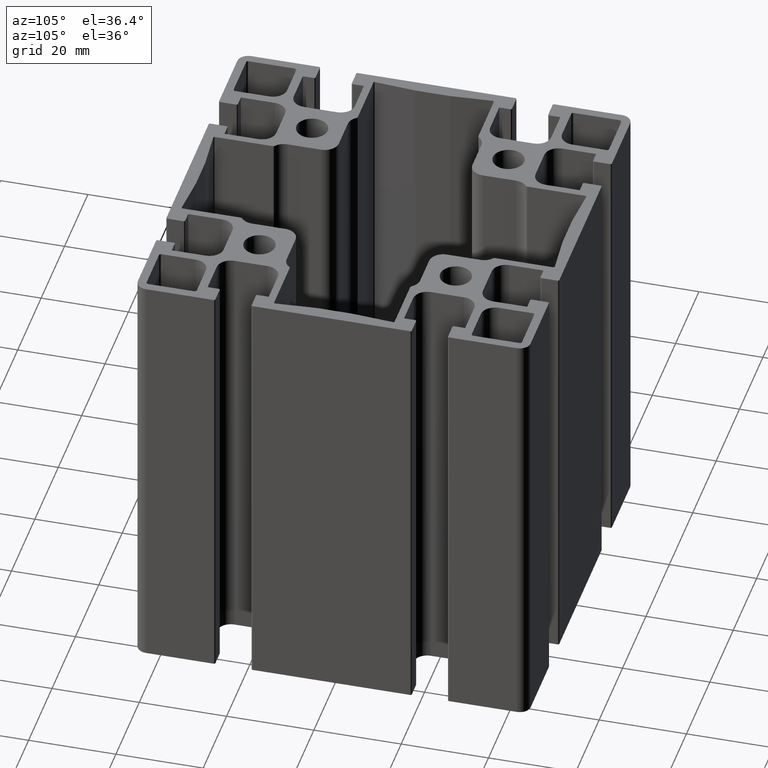
[diagram: clean part render]
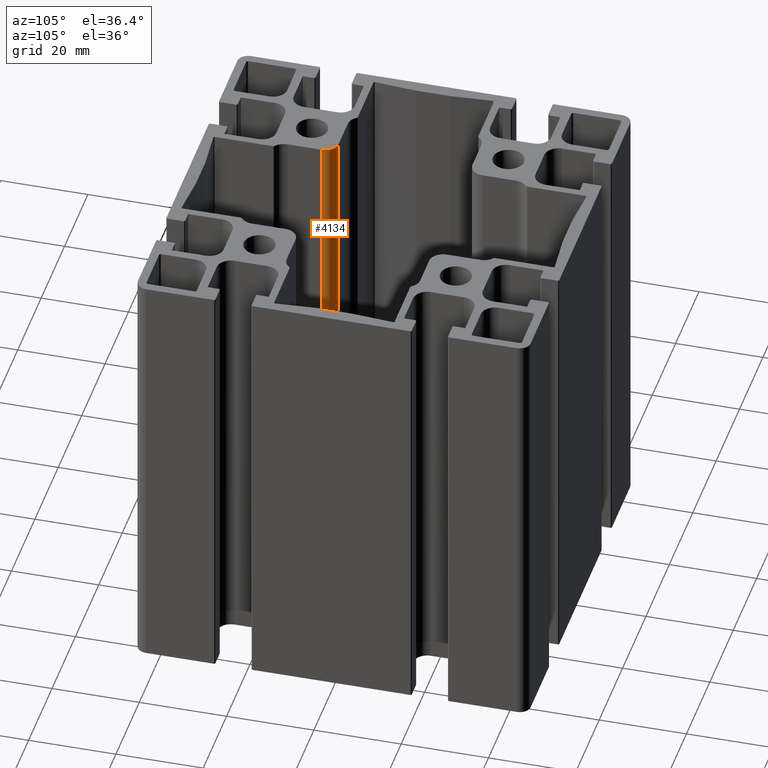
[diagram: same view with one face highlighted and labeled with its STEP entity id]
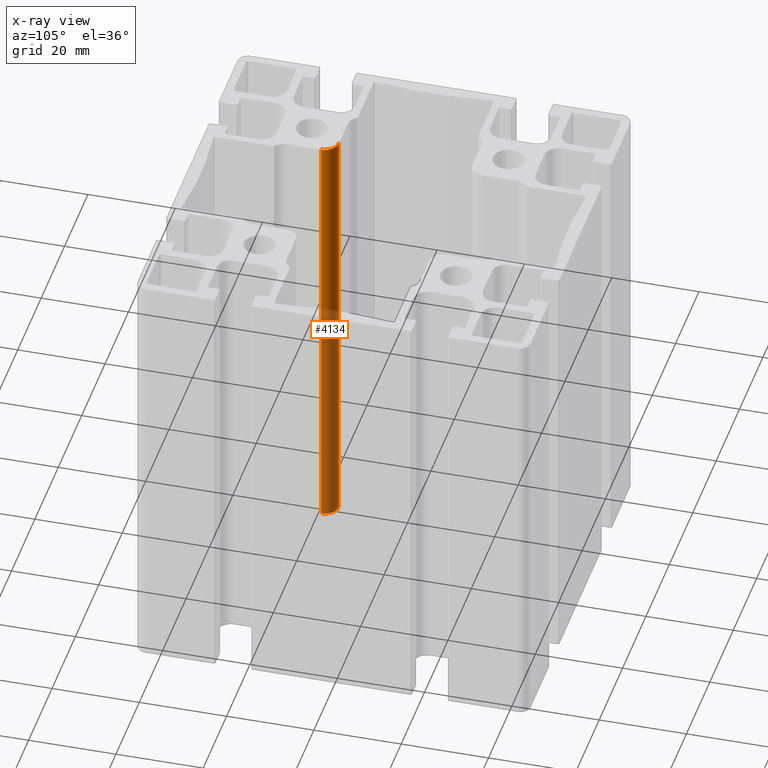
[diagram: x-ray of the same camera — body ghosted, the highlighted face saturated]
A machine part, auxiliary view. The second image highlights one B-rep face of the part: STEP entity #4134.
The next image is the same camera in x-ray: the body ghosted, the highlighted face saturated — about 56% of this face is hidden behind the body in this view.
In plain terms, the highlighted cylindrical surface (edge-blend (fillet) strip) has radius 3.2 mm, axis along (0, 0, 1).
Its self-contained STEP definition (entity closure, byte-faithful):
#85=CIRCLE('',#4399,3.2);
#86=CIRCLE('',#4400,3.2);
#261=CYLINDRICAL_SURFACE('',#4398,3.2);
#386=FACE_OUTER_BOUND('',#600,.T.);
#600=EDGE_LOOP('',(#2903,#2904,#2905,#2906));
#886=LINE('',#6274,#1318);
#887=LINE('',#6280,#1319);
#1318=VECTOR('',#5010,100.);
#1319=VECTOR('',#5017,100.);
#1749=VERTEX_POINT('',#6270);
#1750=VERTEX_POINT('',#6272);
#1751=VERTEX_POINT('',#6276);
#1752=VERTEX_POINT('',#6278);
#2222=EDGE_CURVE('',#1750,#1749,#886,.T.);
#2223=EDGE_CURVE('',#1749,#1751,#85,.T.);
#2224=EDGE_CURVE('',#1752,#1750,#86,.T.);
#2225=EDGE_CURVE('',#1752,#1751,#887,.T.);
#2903=ORIENTED_EDGE('',*,*,#2223,.F.);
#2904=ORIENTED_EDGE('',*,*,#2222,.F.);
#2905=ORIENTED_EDGE('',*,*,#2224,.F.);
#2906=ORIENTED_EDGE('',*,*,#2225,.T.);
#4134=ADVANCED_FACE('',(#386),#261,.T.);
#4398=AXIS2_PLACEMENT_3D('',#6275,#5011,#5012);
#4399=AXIS2_PLACEMENT_3D('',#6277,#5013,#5014);
#4400=AXIS2_PLACEMENT_3D('',#6279,#5015,#5016);
#5010=DIRECTION('',(0.,0.,1.));
#5011=DIRECTION('center_axis',(0.,0.,1.));
#5012=DIRECTION('ref_axis',(-1.,1.38777878078145E-15,0.));
#5013=DIRECTION('center_axis',(0.,0.,1.));
#5014=DIRECTION('ref_axis',(-1.,1.38777878078145E-15,0.));
#5015=DIRECTION('center_axis',(0.,0.,-1.));
#5016=DIRECTION('ref_axis',(-1.,1.38777878078145E-15,0.));
#5017=DIRECTION('',(0.,0.,1.));
#6270=CARTESIAN_POINT('',(-15.3,-18.5,100.));
#6272=CARTESIAN_POINT('',(-15.3,-18.5,0.));
#6274=CARTESIAN_POINT('',(-15.3,-18.5,0.));
#6275=CARTESIAN_POINT('Origin',(-18.5,-18.5,0.));
#6276=CARTESIAN_POINT('',(-18.5,-15.3,100.));
#6277=CARTESIAN_POINT('Origin',(-18.5,-18.5,100.));
#6278=CARTESIAN_POINT('',(-18.5,-15.3,0.));
#6279=CARTESIAN_POINT('Origin',(-18.5,-18.5,0.));
#6280=CARTESIAN_POINT('',(-18.5,-15.3,0.));